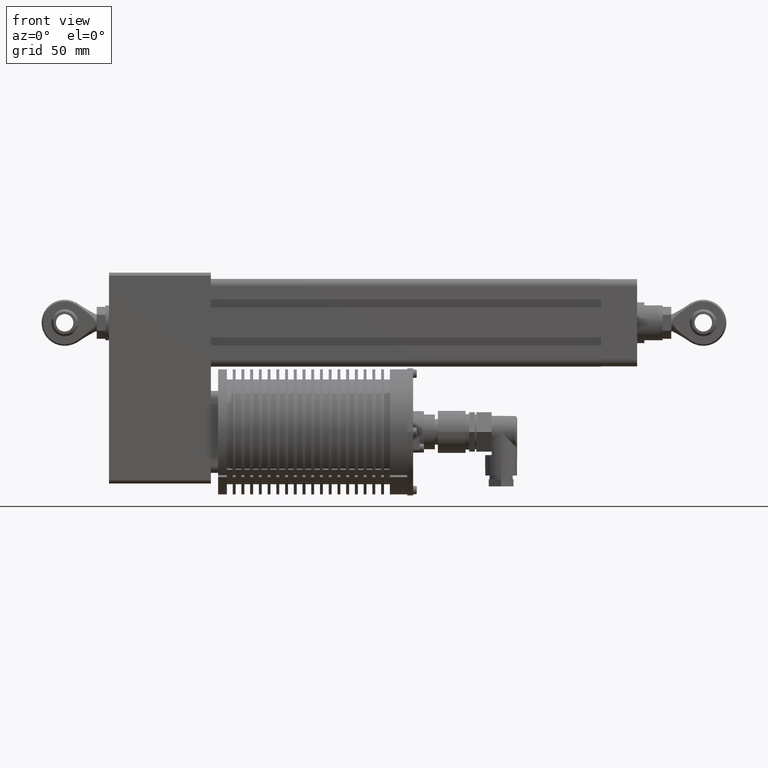
[diagram: clean part render]
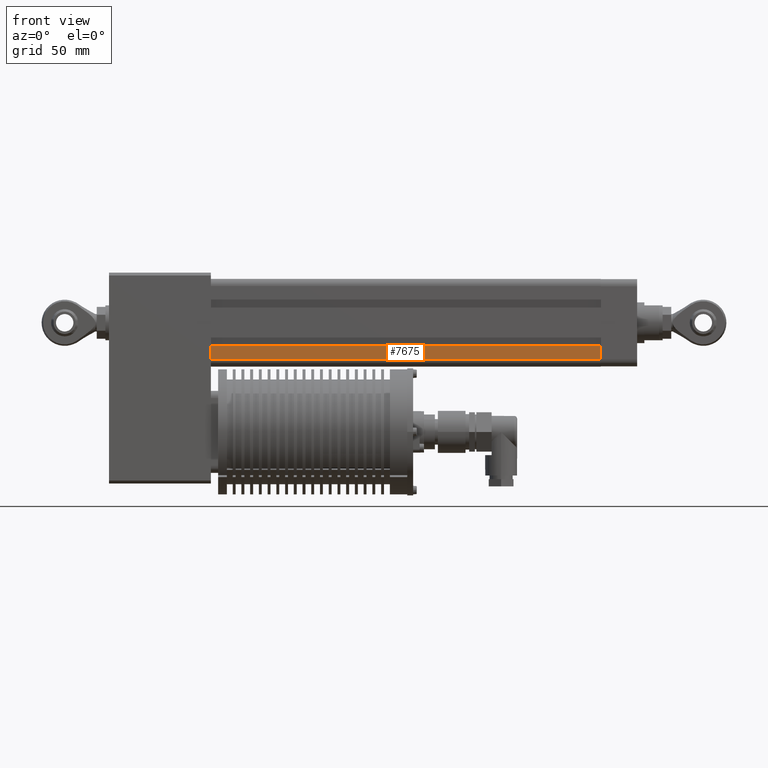
[diagram: same view with one face highlighted and labeled with its STEP entity id]
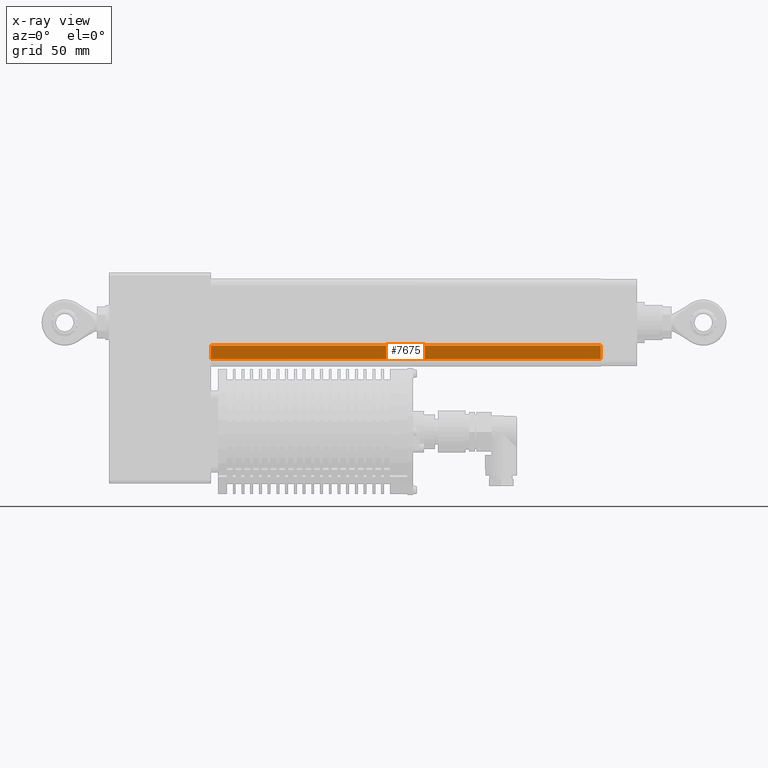
[diagram: x-ray of the same camera — body ghosted, the highlighted face saturated]
A machine part, front view. The second image highlights one B-rep face of the part: STEP entity #7675.
The next image is the same camera in x-ray: the body ghosted, the highlighted face saturated — about 0% of this face is hidden behind the body in this view.
In plain terms, the highlighted planar face has unit normal (0, -1, -0).
Its self-contained STEP definition (entity closure, byte-faithful):
#7619=CARTESIAN_POINT('',(232.0,30.149999999999920,15.725000000000023));
#7620=VERTEX_POINT('',#7619);
#7627=CARTESIAN_POINT('',(500.0,30.149999999999920,15.725000000000023));
#7628=VERTEX_POINT('',#7627);
#7629=CARTESIAN_POINT('',(500.0,30.149999999999920,15.725000000000023));
#7630=DIRECTION('',(-1.0,0.0,0.0));
#7631=VECTOR('',#7630,268.0);
#7632=LINE('',#7629,#7631);
#7633=EDGE_CURVE('',#7628,#7620,#7632,.T.);
#7645=CARTESIAN_POINT('',(500.0,30.149999999999920,15.725000000000023));
#7646=DIRECTION('',(0.0,1.0,0.0));
#7647=DIRECTION('',(0.0,0.0,1.0));
#7648=AXIS2_PLACEMENT_3D('',#7645,#7646,#7647);
#7649=PLANE('',#7648);
#7650=CARTESIAN_POINT('',(232.0,30.149999999999977,25.150000000000034));
#7651=VERTEX_POINT('',#7650);
#7652=CARTESIAN_POINT('',(232.0,30.149999999999920,15.725000000000023));
#7653=DIRECTION('',(0.0,0.0,1.0));
#7654=VECTOR('',#7653,9.425000000000011);
#7655=LINE('',#7652,#7654);
#7656=EDGE_CURVE('',#7620,#7651,#7655,.T.);
#7657=ORIENTED_EDGE('',*,*,#7656,.T.);
#7658=CARTESIAN_POINT('',(500.0,30.149999999999977,25.150000000000034));
#7659=VERTEX_POINT('',#7658);
#7660=CARTESIAN_POINT('',(500.0,30.149999999999977,25.150000000000034));
#7661=DIRECTION('',(-1.0,0.0,0.0));
#7662=VECTOR('',#7661,268.0);
#7663=LINE('',#7660,#7662);
#7664=EDGE_CURVE('',#7659,#7651,#7663,.T.);
#7665=ORIENTED_EDGE('',*,*,#7664,.F.);
#7666=CARTESIAN_POINT('',(500.0,30.149999999999920,15.725000000000023));
#7667=DIRECTION('',(0.0,0.0,1.0));
#7668=VECTOR('',#7667,9.425000000000011);
#7669=LINE('',#7666,#7668);
#7670=EDGE_CURVE('',#7628,#7659,#7669,.T.);
#7671=ORIENTED_EDGE('',*,*,#7670,.F.);
#7672=ORIENTED_EDGE('',*,*,#7633,.T.);
#7673=EDGE_LOOP('',(#7657,#7665,#7671,#7672));
#7674=FACE_OUTER_BOUND('',#7673,.T.);
#7675=ADVANCED_FACE('',(#7674),#7649,.T.);